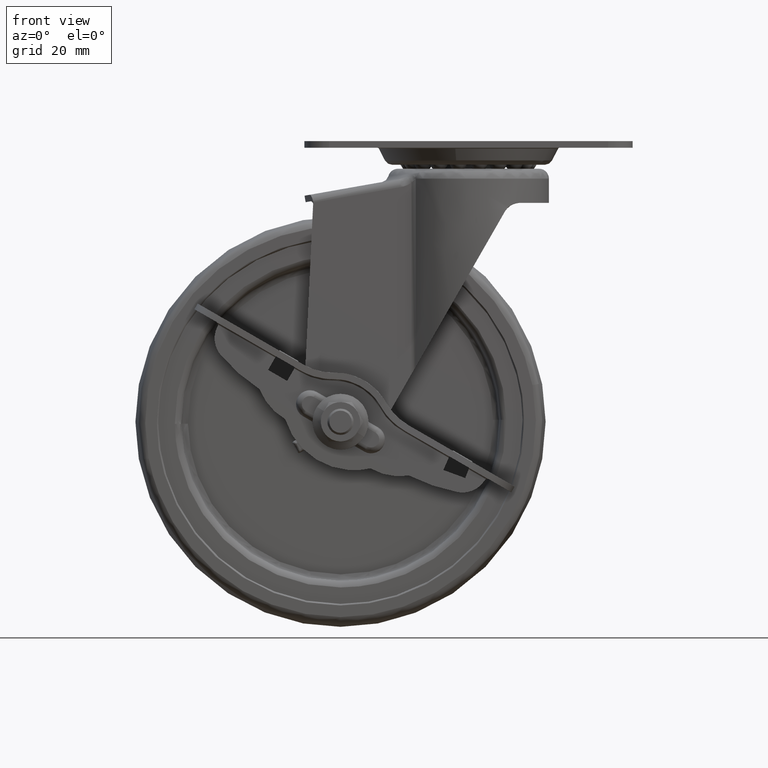
[diagram: clean part render]
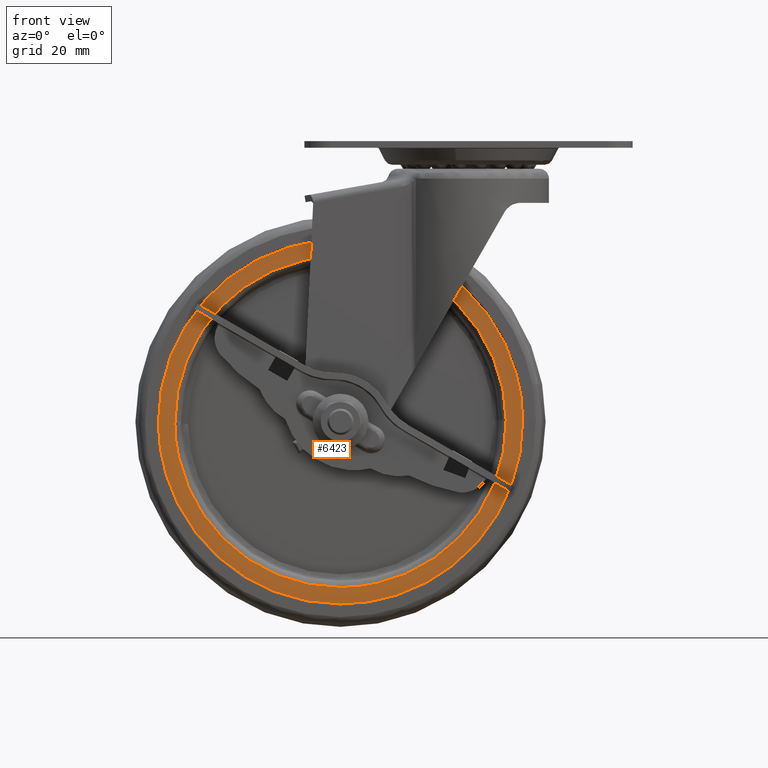
[diagram: same view with one face highlighted and labeled with its STEP entity id]
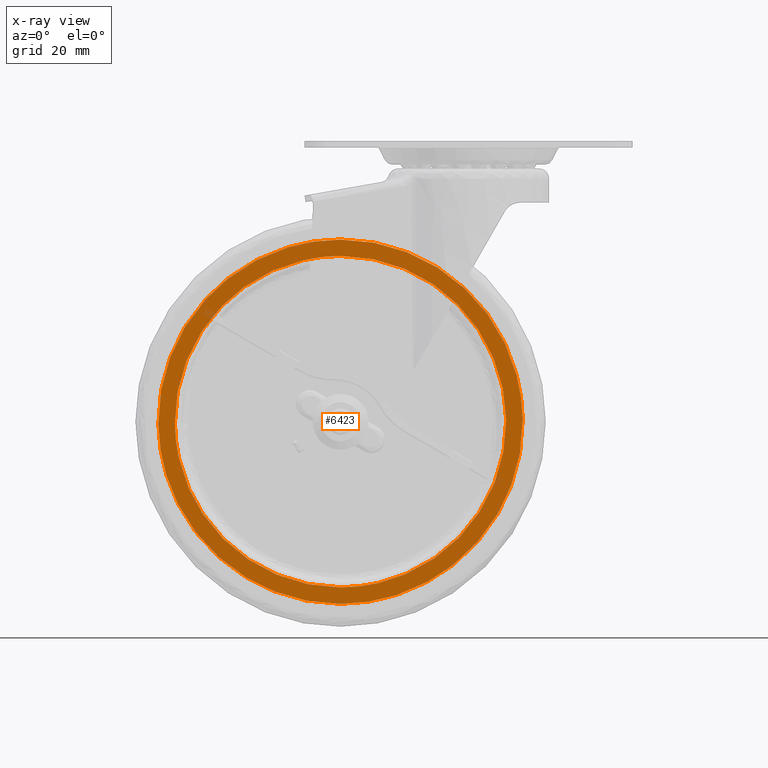
[diagram: x-ray of the same camera — body ghosted, the highlighted face saturated]
A machine part, front view. The second image highlights one B-rep face of the part: STEP entity #6423.
The next image is the same camera in x-ray: the body ghosted, the highlighted face saturated — about 1% of this face is hidden behind the body in this view.
In plain terms, the highlighted face is a freeform B-spline surface patch.
Its self-contained STEP definition (entity closure, byte-faithful):
#6206=CARTESIAN_POINT('',(16.495617953310219,-13.000000013864710,-82.802584786349385));
#6207=VERTEX_POINT('',#6206);
#6217=CARTESIAN_POINT('',(-39.0,-13.0,-139.0));
#6218=VERTEX_POINT('',#6217);
#6219=CARTESIAN_POINT('',(16.495617953310219,-13.000000013864710,-82.802584786349385));
#6220=CARTESIAN_POINT('',(16.551267764529790,-13.000000013328510,-87.150394300472030));
#6221=CARTESIAN_POINT('',(15.910139328193400,-13.000000012490929,-93.222850101414082));
#6222=CARTESIAN_POINT('',(13.688686809327670,-13.000000011210011,-101.284288710305110));
#6223=CARTESIAN_POINT('',(11.578087989542180,-13.000000010283969,-106.613659530735600));
#6224=CARTESIAN_POINT('',(8.425446821057705,-13.000000009148390,-112.591529476941500));
#6225=CARTESIAN_POINT('',(4.766031312556381,-13.000000008037480,-117.872901328292400));
#6226=CARTESIAN_POINT('',(-0.445675516755615,-13.000000006670650,-123.664787718841890));
#6227=CARTESIAN_POINT('',(-6.319618639918698,-13.000000005327159,-128.632620269666690));
#6228=CARTESIAN_POINT('',(-13.176439967909820,-13.000000003956540,-132.811603829132110));
#6229=CARTESIAN_POINT('',(-19.053026629660639,-13.000000002911371,-135.396439076241110));
#6230=CARTESIAN_POINT('',(-24.937677031121659,-13.000000001946541,-137.296683208430810));
#6231=CARTESIAN_POINT('',(-31.333730362393450,-13.000000000991550,-138.641248417448590));
#6232=CARTESIAN_POINT('',(-36.368294076873411,-13.000000000323530,-139.000113507199190));
#6233=CARTESIAN_POINT('',(-39.0,-13.0,-139.0));
#6234=B_SPLINE_CURVE_WITH_KNOTS('',3,(#6219,#6220,#6221,#6222,#6223,#6224,#6225,#6226,#6227,#6228,#6229,#6230,#6231,#6232,#6233),.UNSPECIFIED.,.F.,.U.,(4,1,1,1,1,1,1,1,1,1,1,1,4),(0.000000135308355,13.044164208807020,18.193234511925400,25.058614832034930,30.207680669100821,38.446164974820391,44.281572267344501,53.549887054056647,61.445082493111769,68.310463503715752,72.772962889782278,79.981656869804567,87.876769773703259),.UNSPECIFIED.);
#6235=EDGE_CURVE('',#6207,#6218,#6234,.T.);
#6237=CARTESIAN_POINT('',(-94.495617953310216,-13.000000013864719,-84.197415213650601));
#6238=VERTEX_POINT('',#6237);
#6239=CARTESIAN_POINT('',(-39.0,-13.0,-139.0));
#6240=CARTESIAN_POINT('',(-42.490819795045503,-13.000000000441480,-139.000393516598790));
#6241=CARTESIAN_POINT('',(-47.895752369774662,-13.000000001189081,-138.488281573929610));
#6242=CARTESIAN_POINT('',(-56.218883892021587,-13.000000002496829,-136.447746124385990));
#6243=CARTESIAN_POINT('',(-63.047965545613380,-13.000000003698601,-133.740845084756700));
#6244=CARTESIAN_POINT('',(-70.180666903423145,-13.000000005115171,-129.623899149225110));
#6245=CARTESIAN_POINT('',(-76.602214205641332,-13.000000006550261,-124.635958722809700));
#6246=CARTESIAN_POINT('',(-82.082676015516995,-13.000000007975281,-118.777819303102010));
#6247=CARTESIAN_POINT('',(-86.749168192861205,-13.000000009395739,-112.131120747037200));
#6248=CARTESIAN_POINT('',(-90.728665700008278,-13.000000010865589,-104.396928712182000));
#6249=CARTESIAN_POINT('',(-93.691335510730724,-13.000000012441440,-94.773071552378909));
#6250=CARTESIAN_POINT('',(-94.452098754371747,-13.000000013424140,-87.687940113727223));
#6251=CARTESIAN_POINT('',(-94.495617953310216,-13.000000013864719,-84.197415213650601));
#6252=B_SPLINE_CURVE_WITH_KNOTS('',3,(#6239,#6240,#6241,#6242,#6243,#6244,#6245,#6246,#6247,#6248,#6249,#6250,#6251),.UNSPECIFIED.,.F.,.U.,(4,1,1,1,1,1,1,1,1,1,4),(0.000000135213696,10.472372142940570,16.215349614933061,25.674315708480130,32.430755206502702,40.876231963981063,49.997332639855642,56.415923424415752,65.199243237111190,76.009534657904936,86.481896070756790),.UNSPECIFIED.);
#6253=EDGE_CURVE('',#6218,#6238,#6252,.T.);
#6294=CARTESIAN_POINT('',(-39.0,-13.0,-28.0));
#6295=VERTEX_POINT('',#6294);
#6296=CARTESIAN_POINT('',(-94.495617953310216,-13.000000013864719,-84.197415213650601));
#6297=CARTESIAN_POINT('',(-94.533142306610017,-13.000000013497811,-81.222676922492781));
#6298=CARTESIAN_POINT('',(-94.097368146420266,-13.000000012642859,-74.809003989755468));
#6299=CARTESIAN_POINT('',(-92.012752411291061,-13.000000011326510,-66.327888113761730));
#6300=CARTESIAN_POINT('',(-88.919631262095223,-13.000000010019910,-58.922947532206130));
#6301=CARTESIAN_POINT('',(-85.733304630516244,-13.000000008930890,-53.349520405342624));
#6302=CARTESIAN_POINT('',(-81.882622553287391,-13.000000007796871,-48.075631344060398));
#6303=CARTESIAN_POINT('',(-77.917534894507554,-13.000000006771421,-43.777354693213283));
#6304=CARTESIAN_POINT('',(-72.739834167342536,-13.000000005568319,-39.259285028299132));
#6305=CARTESIAN_POINT('',(-66.475003087330165,-13.000000004262739,-35.001911045212772));
#6306=CARTESIAN_POINT('',(-59.085367482675373,-13.000000002922400,-31.558824032870660));
#6307=CARTESIAN_POINT('',(-49.869728088464953,-13.000000001436829,-28.770654701065141));
#6308=CARTESIAN_POINT('',(-43.348185279824072,-13.000000000536110,-27.998919061411222));
#6309=CARTESIAN_POINT('',(-39.0,-13.0,-28.0));
#6310=B_SPLINE_CURVE_WITH_KNOTS('',3,(#6296,#6297,#6298,#6299,#6300,#6301,#6302,#6303,#6304,#6305,#6306,#6307,#6308,#6309),.UNSPECIFIED.,.F.,.U.,(4,1,1,1,1,1,1,1,1,1,1,4),(0.000000135346241,8.924950752409245,19.223042421805800,26.088420391705959,32.953808648017883,38.446164974839959,45.654636288464303,50.460415409489741,59.042191839866732,68.310463503718267,74.832575649294967,87.876769773703941),.UNSPECIFIED.);
#6311=EDGE_CURVE('',#6238,#6295,#6310,.T.);
#6313=CARTESIAN_POINT('',(-39.0,-13.0,-28.0));
#6314=CARTESIAN_POINT('',(-35.058704893057921,-13.000000000498440,-27.999259622641269));
#6315=CARTESIAN_POINT('',(-28.753068518525470,-13.000000001380380,-28.674736160397320));
#6316=CARTESIAN_POINT('',(-21.155510263405940,-13.000000002611170,-30.834535426103990));
#6317=CARTESIAN_POINT('',(-15.197703873549511,-13.000000003665001,-33.238179939435661));
#6318=CARTESIAN_POINT('',(-8.735400712628758,-13.000000004916011,-36.710025523480759));
#6319=CARTESIAN_POINT('',(-2.697817500347163,-13.000000006251019,-41.283105881566193));
#6320=CARTESIAN_POINT('',(2.484759618732576,-13.000000007553570,-46.464072150734467));
#6321=CARTESIAN_POINT('',(6.578983822106786,-13.000000008709000,-51.568145488361203));
#6322=CARTESIAN_POINT('',(10.578640428604070,-13.000000010033180,-58.117959478410768));
#6323=CARTESIAN_POINT('',(13.983031655111461,-13.000000011463230,-66.121965832650815));
#6324=CARTESIAN_POINT('',(16.007404563461691,-13.000000012776891,-74.587813355327228));
#6325=CARTESIAN_POINT('',(16.464539349436080,-13.000000013551380,-80.325461378041112));
#6326=CARTESIAN_POINT('',(16.495617953310219,-13.000000013864710,-82.802584786349385));
#6327=B_SPLINE_CURVE_WITH_KNOTS('',3,(#6313,#6314,#6315,#6316,#6317,#6318,#6319,#6320,#6321,#6322,#6323,#6324,#6325,#6326),.UNSPECIFIED.,.F.,.U.,(4,1,1,1,1,1,1,1,1,1,1,4),(0.000000135255249,11.823689116369270,18.917902444386939,23.647396447904679,31.079438496184629,40.876231964017499,46.281250290123040,53.037694861918972,60.469750768928662,69.253093395650112,79.049920381243751,86.481896070756420),.UNSPECIFIED.);
#6328=EDGE_CURVE('',#6295,#6207,#6327,.T.);
#6334=CARTESIAN_POINT('',(-100.039629971723400,-13.0,-144.544449784860490));
#6335=CARTESIAN_POINT('',(-100.039629971723400,-13.0,-22.455547237887540));
#6336=CARTESIAN_POINT('',(22.039632948740291,-13.0,-144.544449784860490));
#6337=CARTESIAN_POINT('',(22.039632948740291,-13.0,-22.455547237887540));
#6338=B_SPLINE_SURFACE_WITH_KNOTS('',1,1,((#6334,#6336),(#6335,#6337)),.UNSPECIFIED.,.F.,.F.,.U.,(2,2),(2,2),(0.0,122.088902546972900),(0.0,122.079262920463710),.UNSPECIFIED.);
#6339=ORIENTED_EDGE('',*,*,#6311,.F.);
#6340=ORIENTED_EDGE('',*,*,#6253,.F.);
#6341=ORIENTED_EDGE('',*,*,#6235,.F.);
#6342=ORIENTED_EDGE('',*,*,#6328,.F.);
#6343=EDGE_LOOP('',(#6339,#6340,#6341,#6342));
#6344=FACE_OUTER_BOUND('',#6343,.T.);
#6345=CARTESIAN_POINT('',(-39.0,-13.0,-134.0));
#6346=VERTEX_POINT('',#6345);
#6347=CARTESIAN_POINT('',(-89.496012718041683,-13.0,-84.134585014565999));
#6348=VERTEX_POINT('',#6347);
#6349=CARTESIAN_POINT('',(-39.0,-13.0,-134.0));
#6350=CARTESIAN_POINT('',(-42.791159238482280,-13.000000000000140,-134.000831078881500));
#6351=CARTESIAN_POINT('',(-48.426190343457492,-12.999999999999780,-133.362285928488400));
#6352=CARTESIAN_POINT('',(-55.230872920831622,-13.000000000000069,-131.405322003303010));
#6353=CARTESIAN_POINT('',(-61.046639193314547,-13.0,-129.100357959302610));
#6354=CARTESIAN_POINT('',(-67.696267880000690,-13.000000000000110,-125.396231033649200));
#6355=CARTESIAN_POINT('',(-74.041820668304638,-13.000000000000171,-120.149883414141400));
#6356=CARTESIAN_POINT('',(-78.805111770588979,-12.999999999999471,-114.769873324875310));
#6357=CARTESIAN_POINT('',(-82.078941653137264,-13.000000000000821,-110.045957769012900));
#6358=CARTESIAN_POINT('',(-85.157971585125978,-12.999999999998540,-104.362657824338200));
#6359=CARTESIAN_POINT('',(-87.382150396780858,-13.000000000000460,-98.499045895265425));
#6360=CARTESIAN_POINT('',(-89.033154940755409,-12.999999999999870,-91.404048227972325));
#6361=CARTESIAN_POINT('',(-89.461486700027052,-13.000000000000490,-86.900848342967151));
#6362=CARTESIAN_POINT('',(-89.496012718041683,-13.0,-84.134585014565999));
#6363=B_SPLINE_CURVE_WITH_KNOTS('',3,(#6349,#6350,#6351,#6352,#6353,#6354,#6355,#6356,#6357,#6358,#6359,#6360,#6361,#6362),.UNSPECIFIED.,.F.,.U.,(4,1,1,1,1,1,1,1,1,1,1,4),(0.000000142414393,11.373237304547359,16.906212300588571,21.209615864346461,30.123805455043520,39.652664135263230,45.800459889175727,51.640754602103648,56.866339031407847,65.165768082852082,70.391338868841203,78.690734253090966),.UNSPECIFIED.);
#6364=EDGE_CURVE('',#6346,#6348,#6363,.T.);
#6365=ORIENTED_EDGE('',*,*,#6364,.T.);
#6366=CARTESIAN_POINT('',(-39.0,-13.0,-33.0));
#6367=VERTEX_POINT('',#6366);
#6368=CARTESIAN_POINT('',(-89.496012718041683,-13.0,-84.134585014565999));
#6369=CARTESIAN_POINT('',(-89.538300650870084,-13.000000000000011,-80.803171075366961));
#6370=CARTESIAN_POINT('',(-89.086225794489877,-13.0,-75.591560220113749));
#6371=CARTESIAN_POINT('',(-87.294037157513699,-13.000000000000030,-68.300715702659716));
#6372=CARTESIAN_POINT('',(-84.874723946929635,-12.999999999999970,-61.963680289817447));
#6373=CARTESIAN_POINT('',(-81.866569515381968,-13.0,-56.586838179415821));
#6374=CARTESIAN_POINT('',(-77.968012101994645,-12.999999999999890,-51.177372531471633));
#6375=CARTESIAN_POINT('',(-73.646782776920261,-12.999999999999989,-46.493037505546610));
#6376=CARTESIAN_POINT('',(-67.939936587740050,-12.999999999999940,-41.933038850679523));
#6377=CARTESIAN_POINT('',(-62.663840222824490,-13.000000000000080,-38.761942574696242));
#6378=CARTESIAN_POINT('',(-57.065162990164787,-13.000000000000069,-36.216121268157750));
#6379=CARTESIAN_POINT('',(-52.094901679145089,-12.999999999999870,-34.628114167906297));
#6380=CARTESIAN_POINT('',(-45.871440550520113,-13.000000000000520,-33.339971354485037));
#6381=CARTESIAN_POINT('',(-41.811090546998273,-12.999999999999419,-32.999764919309342));
#6382=CARTESIAN_POINT('',(-39.0,-13.0,-33.0));
#6383=B_SPLINE_CURVE_WITH_KNOTS('',3,(#6368,#6369,#6370,#6371,#6372,#6373,#6374,#6375,#6376,#6377,#6378,#6379,#6380,#6381,#6382),.UNSPECIFIED.,.F.,.U.,(4,1,1,1,1,1,1,1,1,1,1,1,4),(0.000000143295651,9.994946826256850,15.617162625074799,22.488739090228961,30.297364388777570,34.045471175320252,42.478629352210717,49.350224315765587,55.909471091073328,60.906988640704647,67.778586456885819,71.526725420567587,79.959943659406235),.UNSPECIFIED.);
#6384=EDGE_CURVE('',#6348,#6367,#6383,.T.);
#6385=ORIENTED_EDGE('',*,*,#6384,.T.);
#6386=CARTESIAN_POINT('',(11.496012718041680,-13.0,-82.865414985433986));
#6387=VERTEX_POINT('',#6386);
#6388=CARTESIAN_POINT('',(-39.0,-13.0,-33.0));
#6389=CARTESIAN_POINT('',(-36.028583381717901,-13.0,-32.999687126483842));
#6390=CARTESIAN_POINT('',(-31.725319789433211,-13.000000000000020,-33.380987138790687));
#6391=CARTESIAN_POINT('',(-24.814419297417679,-12.999999999999920,-34.897911917089303));
#6392=CARTESIAN_POINT('',(-18.121561324586210,-13.000000000000229,-37.248835536718040));
#6393=CARTESIAN_POINT('',(-10.303700499167730,-12.999999999999730,-41.603760091139293));
#6394=CARTESIAN_POINT('',(-3.958195653344256,-13.000000000000110,-46.850130471489592));
#6395=CARTESIAN_POINT('',(0.600944848361441,-12.999999999999980,-51.999571210106659));
#6396=CARTESIAN_POINT('',(4.093745554754224,-12.999999999999989,-56.942457594392813));
#6397=CARTESIAN_POINT('',(7.616914506782879,-13.000000000000099,-63.444720109900722));
#6398=CARTESIAN_POINT('',(10.618113703813229,-12.999999999999620,-72.322261242990336));
#6399=CARTESIAN_POINT('',(11.451549121132659,-13.000000000000441,-79.279490187337629));
#6400=CARTESIAN_POINT('',(11.496012718041680,-13.0,-82.865414985433986));
#6401=B_SPLINE_CURVE_WITH_KNOTS('',3,(#6388,#6389,#6390,#6391,#6392,#6393,#6394,#6395,#6396,#6397,#6398,#6399,#6400),.UNSPECIFIED.,.F.,.U.,(4,1,1,1,1,1,1,1,1,1,4),(0.000000142491913,8.914184402143292,12.910162110939780,21.209615864411589,30.123805455100289,39.652664135311213,45.800459889217628,50.718591732529383,57.788501491929971,67.932262013504854,78.690734253090966),.UNSPECIFIED.);
#6402=EDGE_CURVE('',#6367,#6387,#6401,.T.);
#6403=ORIENTED_EDGE('',*,*,#6402,.T.);
#6404=CARTESIAN_POINT('',(11.496012718041680,-13.0,-82.865414985433986));
#6405=CARTESIAN_POINT('',(11.530205380536961,-13.0,-85.572163841073916));
#6406=CARTESIAN_POINT('',(11.161772199335299,-13.000000000000020,-90.991102124927679));
#6407=CARTESIAN_POINT('',(9.362593741392441,-12.999999999999959,-98.722843910989241));
#6408=CARTESIAN_POINT('',(6.356286314487482,-13.000000000000190,-106.178519135390000));
#6409=CARTESIAN_POINT('',(2.428604488836828,-12.999999999999551,-112.716311514445290));
#6410=CARTESIAN_POINT('',(-1.769201828156367,-13.000000000000650,-117.776041106111190));
#6411=CARTESIAN_POINT('',(-5.896194219277174,-12.999999999999501,-121.753417541330290));
#6412=CARTESIAN_POINT('',(-10.082138856802500,-13.000000000000460,-125.035094886786690));
#6413=CARTESIAN_POINT('',(-15.681064196780900,-12.999999999999920,-128.471576422064200));
#6414=CARTESIAN_POINT('',(-21.895756732662509,-12.999999999999959,-131.205231563992410));
#6415=CARTESIAN_POINT('',(-29.942275870115001,-13.000000000000030,-133.423843463268700));
#6416=CARTESIAN_POINT('',(-35.564190929795288,-13.000000000000050,-134.000539952489110));
#6417=CARTESIAN_POINT('',(-39.0,-13.0,-134.0));
#6418=B_SPLINE_CURVE_WITH_KNOTS('',3,(#6404,#6405,#6406,#6407,#6408,#6409,#6410,#6411,#6412,#6413,#6414,#6415,#6416,#6417),.UNSPECIFIED.,.F.,.U.,(4,1,1,1,1,1,1,1,1,1,1,4),(0.000000143154566,8.120875910206038,16.241845098747230,23.738128659452840,32.171422732016268,39.042971486217333,43.415664651099817,49.350224315708601,54.972435512380457,63.093408910286172,69.652656622984850,79.959943659406932),.UNSPECIFIED.);
#6419=EDGE_CURVE('',#6387,#6346,#6418,.T.);
#6420=ORIENTED_EDGE('',*,*,#6419,.T.);
#6421=EDGE_LOOP('',(#6365,#6385,#6403,#6420));
#6422=FACE_BOUND('',#6421,.T.);
#6423=ADVANCED_FACE('',(#6344,#6422),#6338,.F.);